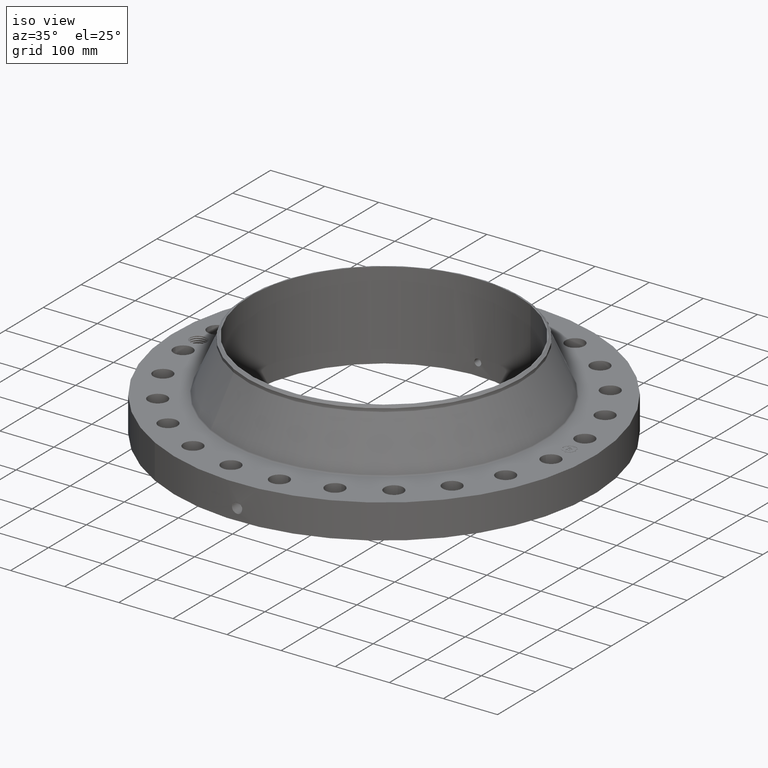
[diagram: clean part render]
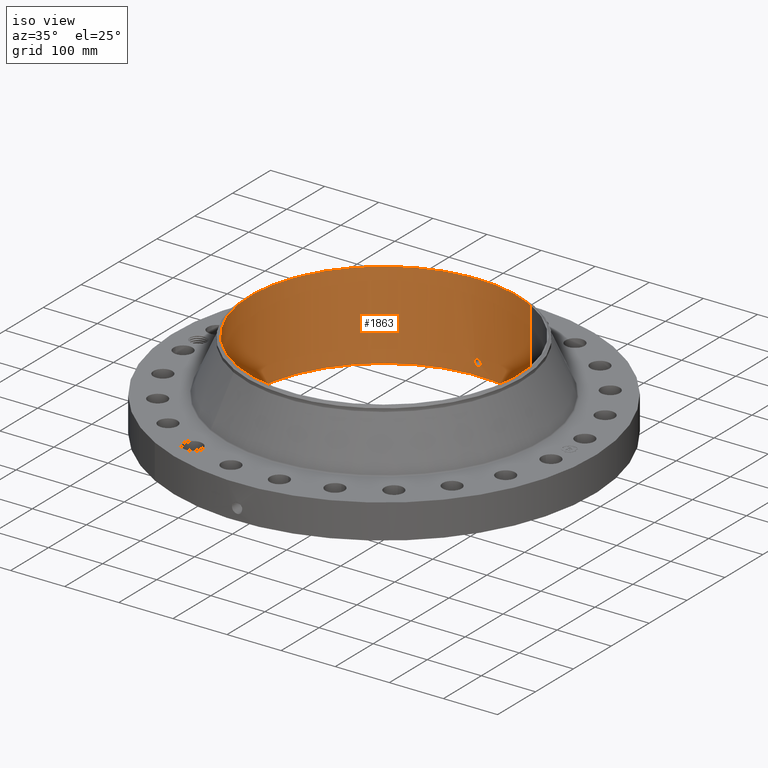
[diagram: same view with one face highlighted and labeled with its STEP entity id]
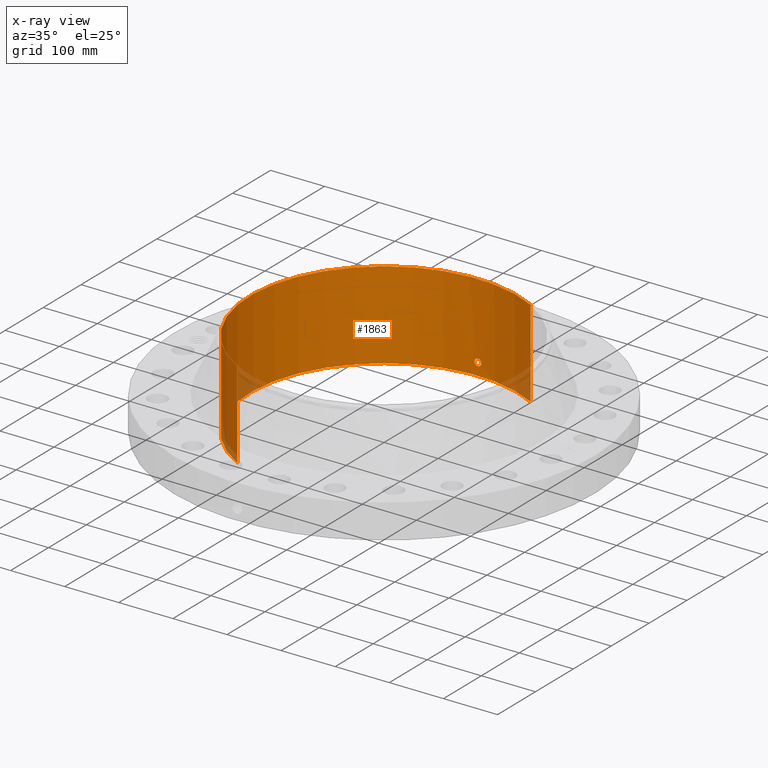
[diagram: x-ray of the same camera — body ghosted, the highlighted face saturated]
A machine part, iso view. The second image highlights one B-rep face of the part: STEP entity #1863.
The next image is the same camera in x-ray: the body ghosted, the highlighted face saturated — about 4% of this face is hidden behind the body in this view.
In plain terms, the highlighted cylindrical surface (partial cylindrical patch) has radius 247.65 mm, axis along (0, 0, -1).
Its self-contained STEP definition (entity closure, byte-faithful):
#267=AXIS2_PLACEMENT_3D('Circle Axis2P3D',#265,#266,$) ;
#1740=AXIS2_PLACEMENT_3D('Cylinder Axis2P3D',#1737,#1738,#1739) ;
#1812=AXIS2_PLACEMENT_3D('Circle Axis2P3D',#1810,#1811,$) ;
#260=CARTESIAN_POINT('Vertex',(4.67439900141,8.55642997847,0.0600000000002)) ;
#262=CARTESIAN_POINT('Vertex',(-4.67439900141,-8.55642997847,0.0600000000002)) ;
#265=CARTESIAN_POINT('Axis2P3D Location',(0.,0.,0.0600000000002)) ;
#1737=CARTESIAN_POINT('Axis2P3D Location',(0.,0.,3.25000000001)) ;
#1746=CARTESIAN_POINT('Vertex',(4.67439900141,8.55642997847,6.44000000003)) ;
#1748=CARTESIAN_POINT('Vertex',(-4.67439900141,-8.55642997847,6.44000000003)) ;
#1751=CARTESIAN_POINT('Line Origine',(4.67439900141,8.55642997847,3.25000000001)) ;
#1756=CARTESIAN_POINT('Line Origine',(-4.67439900141,-8.55642997847,3.25000000001)) ;
#1810=CARTESIAN_POINT('Axis2P3D Location',(0.,0.,6.44000000003)) ;
#1822=CARTESIAN_POINT('Control Point',(0.219395640473,9.74753125431,1.05985638466)) ;
#1823=CARTESIAN_POINT('Control Point',(0.194442898546,9.74809288603,1.10553207238)) ;
#1824=CARTESIAN_POINT('Control Point',(0.15760471236,9.74884214693,1.14471231926)) ;
#1825=CARTESIAN_POINT('Control Point',(0.111106567358,9.74957085037,1.17324369379)) ;
#1826=CARTESIAN_POINT('Control Point',(0.0336712214169,9.75015062135,1.19588289358)) ;
#1827=CARTESIAN_POINT('Control Point',(-0.0446736669999,9.74995025307,1.18805601743)) ;
#1828=CARTESIAN_POINT('Control Point',(-0.0703041570933,9.74979470742,1.18204293626)) ;
#1829=CARTESIAN_POINT('Control Point',(-0.14396119931,9.74910736012,1.15420922548)) ;
#1830=CARTESIAN_POINT('Control Point',(-0.203249380323,9.74798546212,1.09949154086)) ;
#1831=CARTESIAN_POINT('Control Point',(-0.232213577109,9.74724968436,1.05325018248)) ;
#1832=CARTESIAN_POINT('Control Point',(-0.255841176925,9.74664491075,0.975104304459)) ;
#1833=CARTESIAN_POINT('Control Point',(-0.248281598029,9.74683824784,0.895741863759)) ;
#1834=CARTESIAN_POINT('Control Point',(-0.242047849549,9.74699998843,0.869181268109)) ;
#1835=CARTESIAN_POINT('Control Point',(-0.232314747779,9.74724047342,0.84379188265)) ;
#1836=CARTESIAN_POINT('Control Point',(-0.219395640473,9.74753125431,0.820143615352)) ;
#1837=CARTESIAN_POINT('Vertex',(0.219395640473,9.74753125431,1.05985638466)) ;
#1839=CARTESIAN_POINT('Vertex',(-0.219395640473,9.74753125431,0.820143615352)) ;
#1843=CARTESIAN_POINT('Control Point',(-0.219395640473,9.74753125431,0.820143615352)) ;
#1844=CARTESIAN_POINT('Control Point',(-0.19444289852,9.74809288603,0.774467927583)) ;
#1845=CARTESIAN_POINT('Control Point',(-0.157604712283,9.74884214693,0.735287680662)) ;
#1846=CARTESIAN_POINT('Control Point',(-0.111106567466,9.74957085037,0.706756306249)) ;
#1847=CARTESIAN_POINT('Control Point',(-0.0336712214715,9.75015062135,0.684117106419)) ;
#1848=CARTESIAN_POINT('Control Point',(0.0446736669999,9.74995025307,0.691943982573)) ;
#1849=CARTESIAN_POINT('Control Point',(0.0703041570933,9.74979470742,0.697957063745)) ;
#1850=CARTESIAN_POINT('Control Point',(0.14396119926,9.74910736012,0.725790774507)) ;
#1851=CARTESIAN_POINT('Control Point',(0.203249380243,9.74798546212,0.780508459073)) ;
#1852=CARTESIAN_POINT('Control Point',(0.232213577141,9.74724968436,0.826749817635)) ;
#1853=CARTESIAN_POINT('Control Point',(0.25584117692,9.74664491075,0.904895695601)) ;
#1854=CARTESIAN_POINT('Control Point',(0.24828159803,9.74683824784,0.984258136249)) ;
#1855=CARTESIAN_POINT('Control Point',(0.242047849549,9.74699998843,1.0108187319)) ;
#1856=CARTESIAN_POINT('Control Point',(0.232314747779,9.74724047342,1.03620811736)) ;
#1857=CARTESIAN_POINT('Control Point',(0.219395640473,9.74753125431,1.05985638466)) ;
#266=DIRECTION('Axis2P3D Direction',(0.,0.,-0.0393700787402)) ;
#1738=DIRECTION('Axis2P3D Direction',(0.,0.,-0.0393700787402)) ;
#1739=DIRECTION('Axis2P3D XDirection',(-0.0188750212049,-0.0345504945626,0.)) ;
#1752=DIRECTION('Vector Direction',(0.,0.,-0.0393700787402)) ;
#1757=DIRECTION('Vector Direction',(0.,0.,-0.0393700787402)) ;
#1811=DIRECTION('Axis2P3D Direction',(0.,0.,-0.0393700787402)) ;
#1753=VECTOR('Line Direction',#1752,0.0393700787402) ;
#1758=VECTOR('Line Direction',#1757,0.0393700787402) ;
#1816=ORIENTED_EDGE('',*,*,#1814,.F.) ;
#1817=ORIENTED_EDGE('',*,*,#1760,.T.) ;
#1818=ORIENTED_EDGE('',*,*,#269,.T.) ;
#1819=ORIENTED_EDGE('',*,*,#1755,.F.) ;
#1860=ORIENTED_EDGE('',*,*,#1841,.F.) ;
#1861=ORIENTED_EDGE('',*,*,#1858,.F.) ;
#1862=FACE_BOUND('',#1859,.T.) ;
#1863=ADVANCED_FACE('PartBody',(#1820,#1862),#1741,.F.) ;
#1821=B_SPLINE_CURVE_WITH_KNOTS('',5,(#1822,#1823,#1824,#1825,#1826,#1827,#1828,#1829,#1830,#1831,#1832,#1833,#1834,#1835,#1836),.UNSPECIFIED.,.F.,.U.,(6,3,3,3,6),(0.,9.34848235098,14.0229320531,23.3729733433,28.2130845816),.UNSPECIFIED.) ;
#1842=B_SPLINE_CURVE_WITH_KNOTS('',5,(#1843,#1844,#1845,#1846,#1847,#1848,#1849,#1850,#1851,#1852,#1853,#1854,#1855,#1856,#1857),.UNSPECIFIED.,.F.,.U.,(6,3,3,3,6),(0.,9.34848236076,14.0229320629,23.3729733436,28.213084582),.UNSPECIFIED.) ;
#268=CIRCLE('generated circle',#267,9.75000000004) ;
#1813=CIRCLE('generated circle',#1812,9.75000000004) ;
#1741=CYLINDRICAL_SURFACE('generated cylinder',#1740,9.75000000004) ;
#269=EDGE_CURVE('',#263,#261,#268,.T.) ;
#1755=EDGE_CURVE('',#1747,#261,#1754,.T.) ;
#1760=EDGE_CURVE('',#1749,#263,#1759,.T.) ;
#1814=EDGE_CURVE('',#1749,#1747,#1813,.T.) ;
#1841=EDGE_CURVE('',#1838,#1840,#1821,.T.) ;
#1858=EDGE_CURVE('',#1840,#1838,#1842,.T.) ;
#1815=EDGE_LOOP('',(#1816,#1817,#1818,#1819)) ;
#1859=EDGE_LOOP('',(#1860,#1861)) ;
#1820=FACE_OUTER_BOUND('',#1815,.T.) ;
#1754=LINE('Line',#1751,#1753) ;
#1759=LINE('Line',#1756,#1758) ;
#261=VERTEX_POINT('',#260) ;
#263=VERTEX_POINT('',#262) ;
#1747=VERTEX_POINT('',#1746) ;
#1749=VERTEX_POINT('',#1748) ;
#1838=VERTEX_POINT('',#1837) ;
#1840=VERTEX_POINT('',#1839) ;